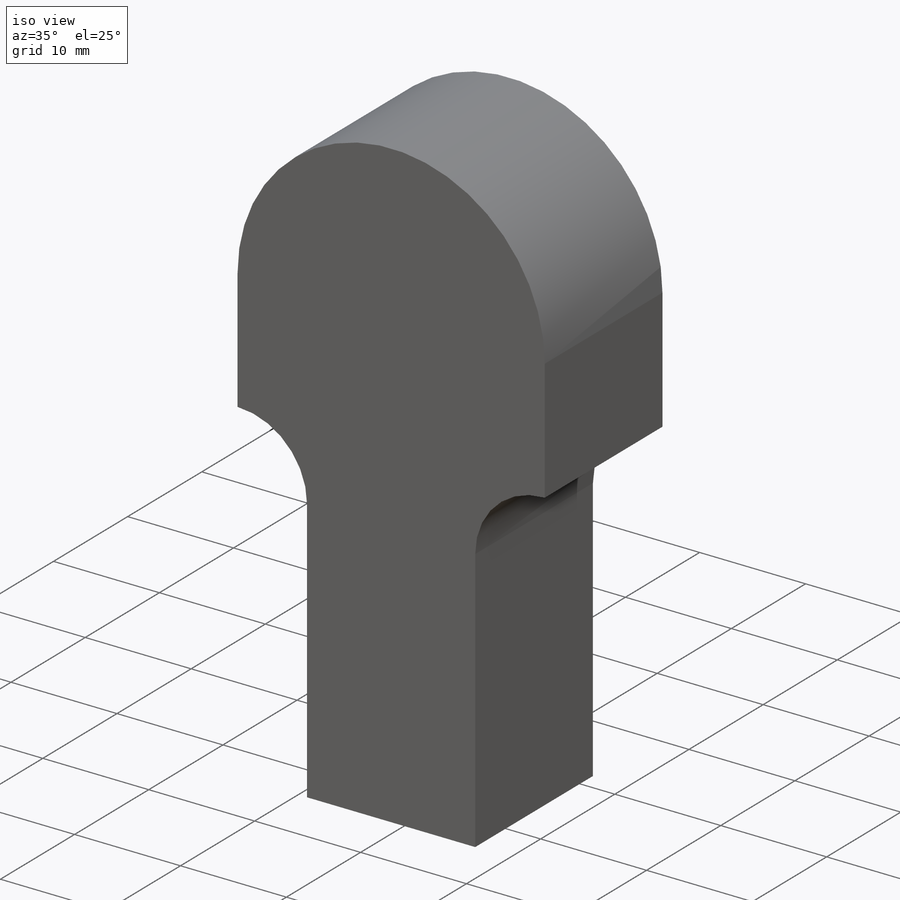
[diagram: iso view]
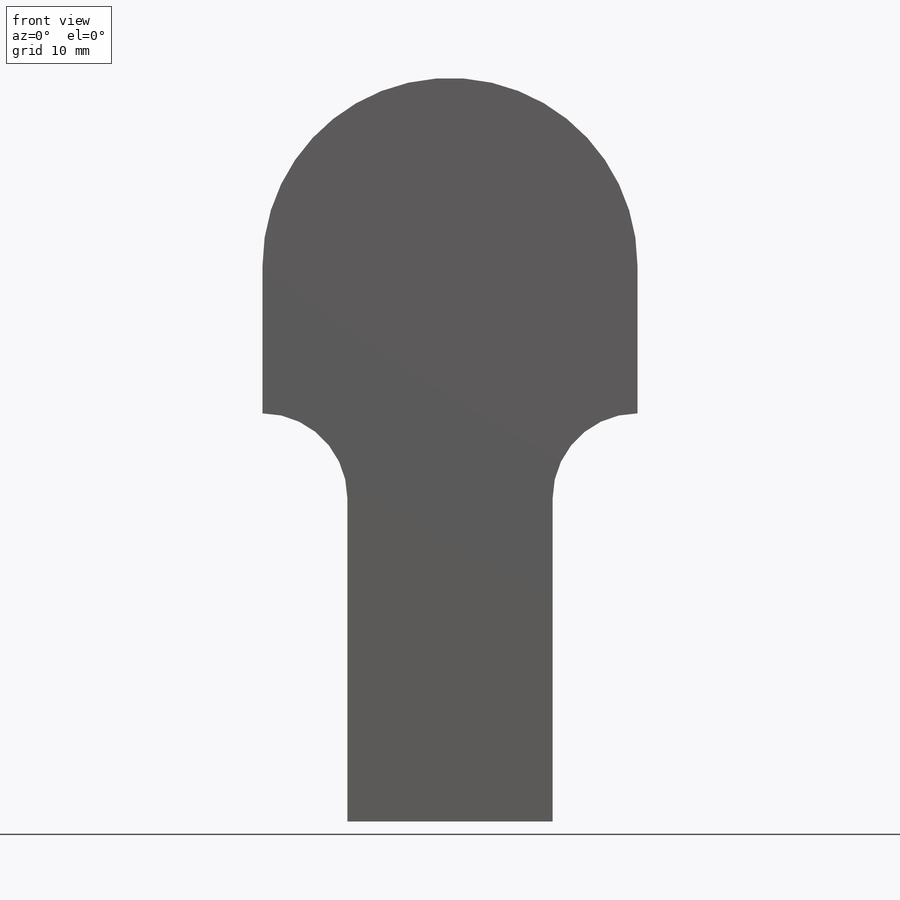
[diagram: front view]
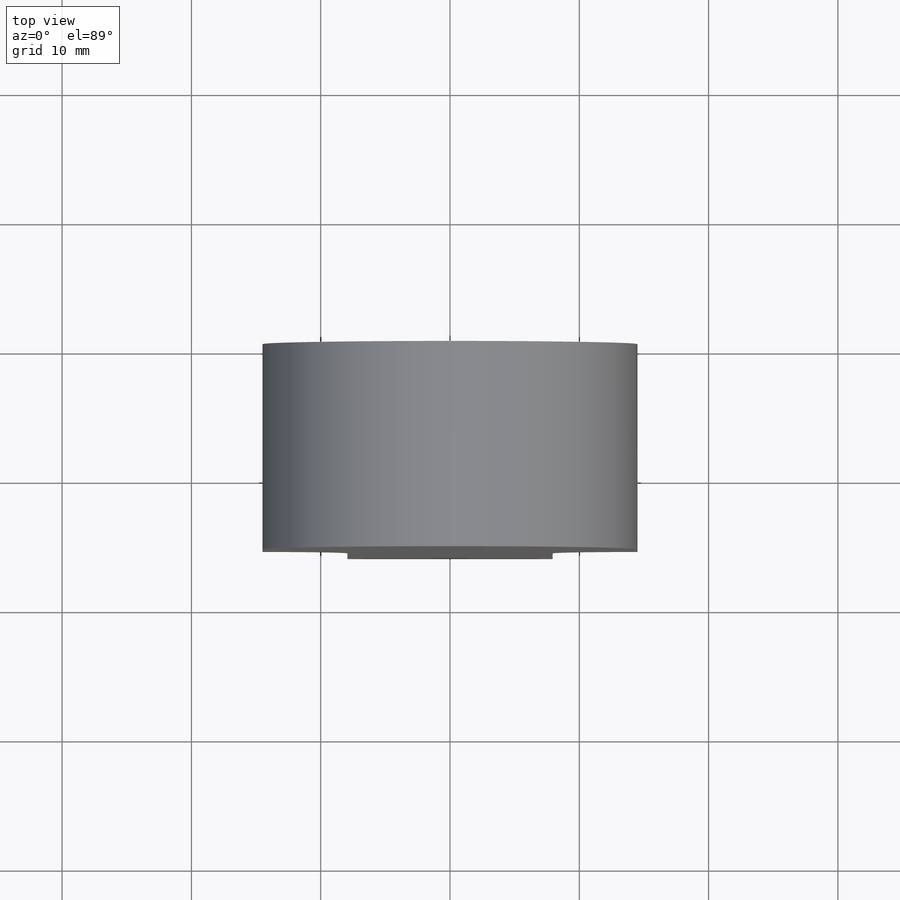
[diagram: top view]
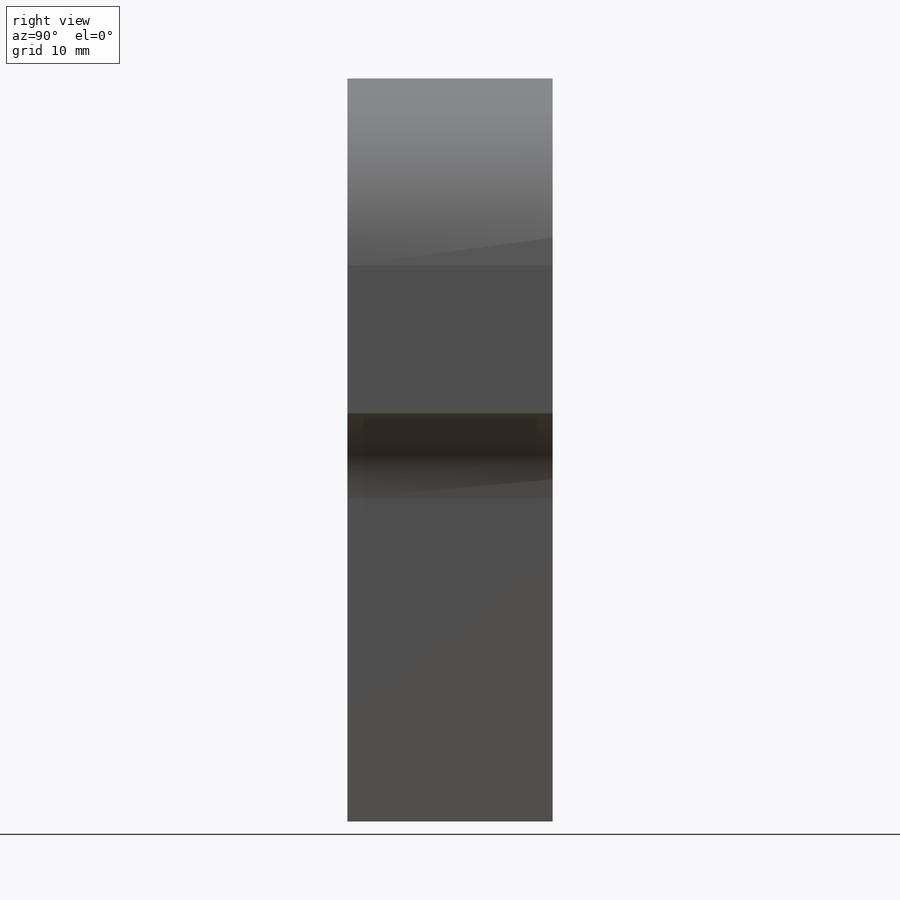
[diagram: right view]
SOLIDWORKS PART (.sldprt)
format: sldprt  version: not decoded by parser v0  size: 434,176 bytes
history: native  units: mm
features: sketch x6, cut_extrude x3, fillet x2, material x1, extrude x1, hole x1, thread x1 (+16 scaffold rows collapsed)
feature tree (31):
  scaffold x16  (default folders/planes/origin — collapsed)
  material  "Stainless Steel (ferritic)"
  sketch  "Sketch1"  dims[c1.D1=29.0mm c1.D2=14.0mm c1.D4=~12.337259mm c1.D3=43.0mm c2.D2=18.0mm c2.D4=15.875mm c2.D5=43.0mm]
  extrude  "Boss-Extrude1"  Depth=15.875mm
  sketch  "Sketch2"  dims[D1=11.8mm]
  cut_extrude  "Cut-Extrude1"  [1 undecoded]
  sketch  "Sketch3"  dims[D1=13.0mm]
  cut_extrude  "Cut-Extrude2"  Depth=2mm
  sketch  "Sketch4"  dims[D1=8.0mm]
  cut_extrude  "Cut-Extrude3"  Depth=9mm
  fillet  "Fillet1"  Radius=1mm
  hole  "M4x0.7 Tapped Hole1"  Diameter=3.3mm Depth=10.1mm
  sketch  "Sketch6"
  sketch  "Sketch5"  dims[hole-wizard template sketch: 50 standard entries collapsed; hole parameters above]
  thread  "Hole Thread1"  Diameter=8mm  [1 undecoded]
  fillet  "Fillet2"  Radius=4mm
decode coverage: 12 of 14 modeling features carry decoded parameters
note: ~ marks probable driven/reference dimensions
note: 2 parameter values undecoded
note: suppression state not decoded; provenance and decode notes live in map.json
